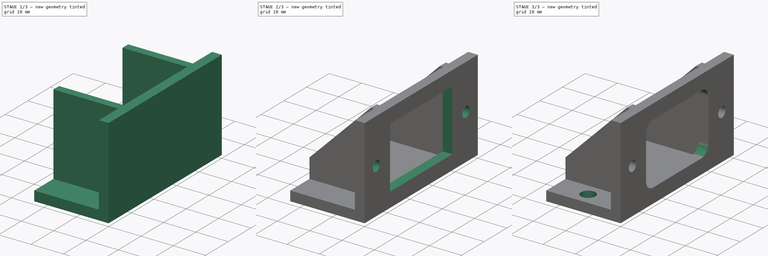
[diagram: build sequence overview — one tinted view per stage of 3, left to right]
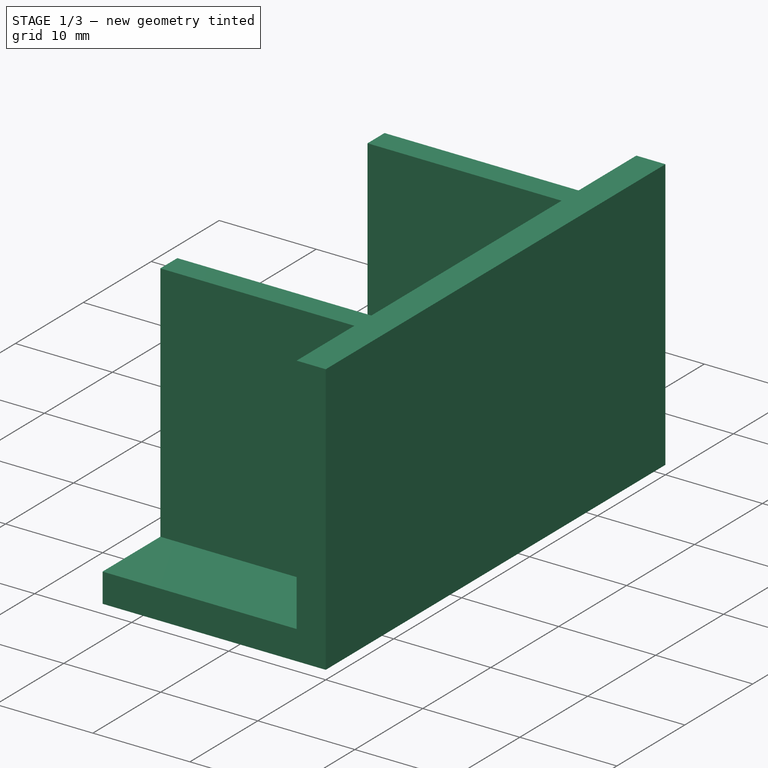
[diagram: stage 1 of 3 — iso view after this stage's code; geometry added in this stage tinted green]
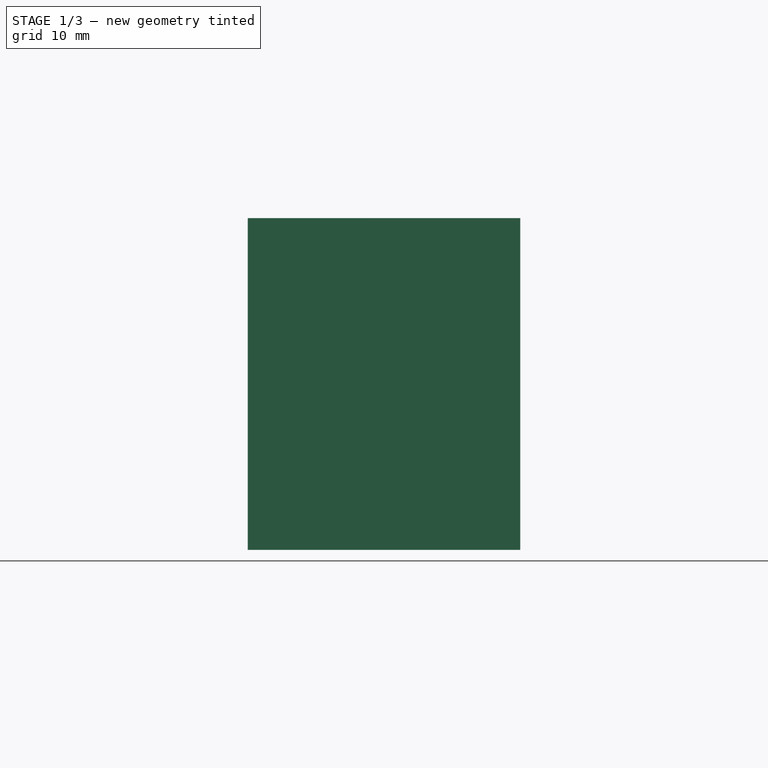
[diagram: stage 1 of 3 — front view after this stage's code; geometry added in this stage tinted green]
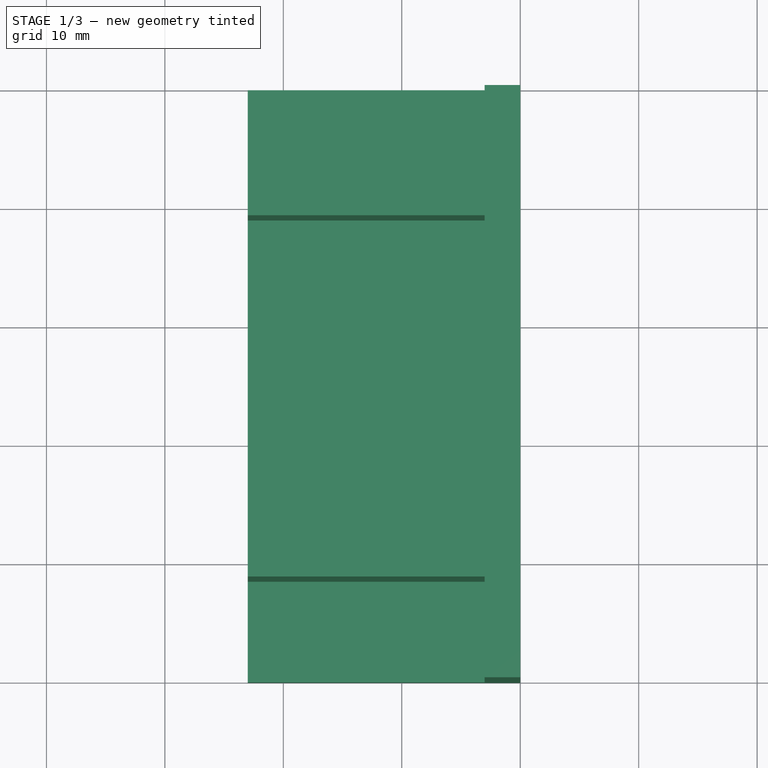
[diagram: stage 1 of 3 — top view after this stage's code; geometry added in this stage tinted green]
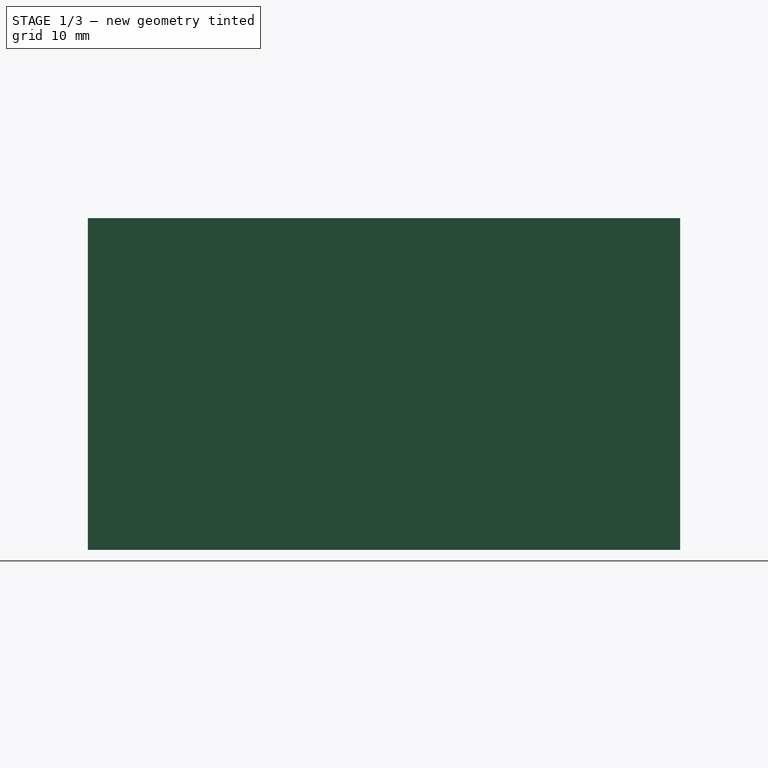
[diagram: stage 1 of 3 — right view after this stage's code; geometry added in this stage tinted green]
FCSTD DOCUMENT  (FreeCAD 0.18R14555 (Git shallow))
Label: Plug Mount
License: All rights reserved
LicenseURL: http://en.wikipedia.org/wiki/All_rights_reserved
objects: Sketcher::SketchObject×4, PartDesign::Pad×2, PartDesign::Chamfer×1, PartDesign::Pocket×1, PartDesign::Fillet×1, PartDesign::Hole×1, PartDesign::Body×1
note: 15 computed .brp shape members not serialized (recipe doc carries the construction recipe); baked Part::Feature solids carry a one-line shape summary decoded from their .brp

FEATURE [Sketcher::SketchObject] Sketch
  MapMode = 5
  Placement = pos=(0,0,0) rot=(1,0,0;1.5708rad)
  Support = -> [XZ_Plane]
  sketch-geometry (6):
    g0: LineSegment StartX=-23 StartY=3 StartZ=0 EndX=-23 EndY=0 EndZ=0
    g1: LineSegment StartX=-23 StartY=0 StartZ=0 EndX=0 EndY=0 EndZ=0
    g2: LineSegment StartX=0 StartY=0 StartZ=0 EndX=0 EndY=28 EndZ=0
    g3: LineSegment StartX=0 StartY=28 StartZ=0 EndX=-3 EndY=28 EndZ=0
    g4: LineSegment StartX=-3 StartY=28 StartZ=0 EndX=-3 EndY=3 EndZ=0
    g5: LineSegment StartX=-3 StartY=3 StartZ=0 EndX=-23 EndY=3 EndZ=0
  constraints (17):
    c: Coincident(g0,g1)
    c: Coincident(g1,g2)
    c: Coincident(g2,g3)
    c: Coincident(g3,g4)
    c: Coincident(g4,g5)
    c: Coincident(g5,g0)
    c: Horizontal(g1)
    c: Horizontal(g5)
    c: Horizontal(g3)
    c: Vertical(g0)
    c: Vertical(g4)
    c: Vertical(g2)
    c: Equal(g3,g0)
    c: DistanceX(g3,g3) = 3
    c: Coincident(g1,g-1)
    c: DistanceY(g4,g4) = 25
    c: DistanceX(g5,g5) = 20
FEATURE [PartDesign::Pad] Pad
  Length = 50
  Length2 = 100
  Placement = pos=(0,0,0) rot=(1,0,0;1.5708rad)
  Profile = -> Sketch
  Type = 0
FEATURE [Sketcher::SketchObject] Sketch003
  ExternalGeometry = -> [Pad]
  MapMode = 5
  Placement = pos=(0,2e-15,3) rot=(0,0,1;3.14159rad)
  Support = -> [Pad]
  sketch-geometry (8):
    g0: LineSegment StartX=3 StartY=41.5 StartZ=0 EndX=23 EndY=41.5 EndZ=0
    g1: LineSegment StartX=23 StartY=41.5 StartZ=0 EndX=23 EndY=39 EndZ=0
    g2: LineSegment StartX=23 StartY=39 StartZ=0 EndX=3 EndY=39 EndZ=0
    g3: LineSegment StartX=3 StartY=39 StartZ=0 EndX=3 EndY=41.5 EndZ=0
    g4: LineSegment StartX=3 StartY=11 StartZ=0 EndX=23 EndY=11 EndZ=0
    g5: LineSegment StartX=23 StartY=11 StartZ=0 EndX=23 EndY=8.5 EndZ=0
    g6: LineSegment StartX=23 StartY=8.5 StartZ=0 EndX=3 EndY=8.5 EndZ=0
    g7: LineSegment StartX=3 StartY=8.5 StartZ=0 EndX=3 EndY=11 EndZ=0
  constraints (24):
    c: Coincident(g0,g1)
    c: Coincident(g1,g2)
    c: Coincident(g2,g3)
    c: Coincident(g3,g0)
    c: Horizontal(g0)
    c: Horizontal(g2)
    c: Vertical(g1)
    c: Vertical(g3)
    c: Coincident(g4,g5)
    c: Coincident(g5,g6)
    c: Coincident(g6,g7)
    c: Coincident(g7,g4)
    c: Horizontal(g4)
    c: Horizontal(g6)
    c: Vertical(g5)
    c: Vertical(g7)
    c: Vertical(g0,g-3)
    c: Vertical(g0,g-3)
    c: DistanceY(g1,g1) = 2.5
    c: DistanceY(g0,g-3) = 8.5
    c: Equal(g5,g1)
    c: Vertical(g4,g1)
    c: Vertical(g4,g2)
    c: DistanceY(g-4,g5) = 8.5
FEATURE [PartDesign::Pad] Pad001
  BaseFeature = -> Pad
  Length = 25
  Length2 = 100
  Placement = pos=(0,0,0) rot=(1,0,0;1.5708rad)
  Profile = -> Sketch003
  Type = 0
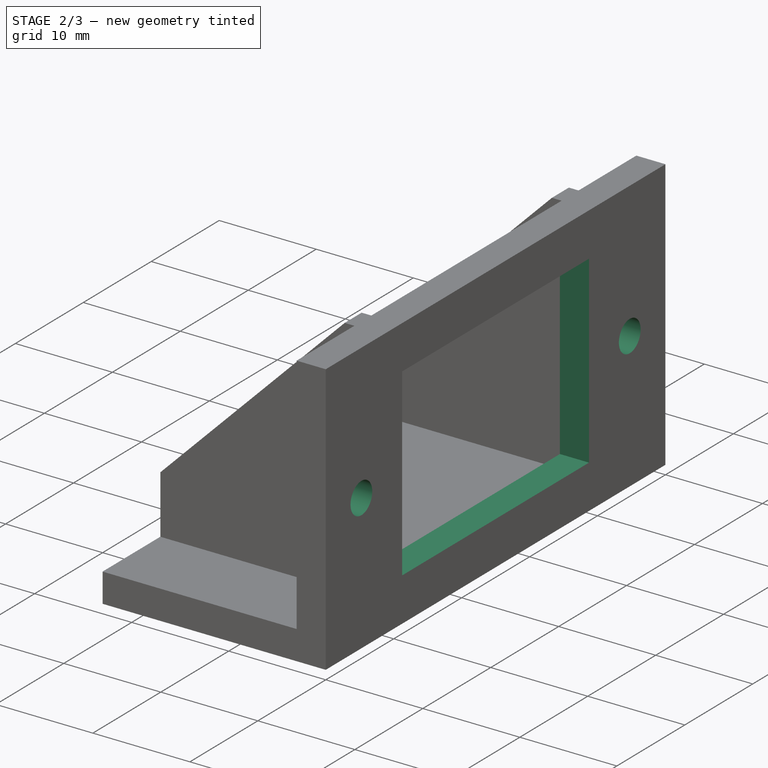
[diagram: stage 2 of 3 — iso view after this stage's code; geometry added in this stage tinted green]
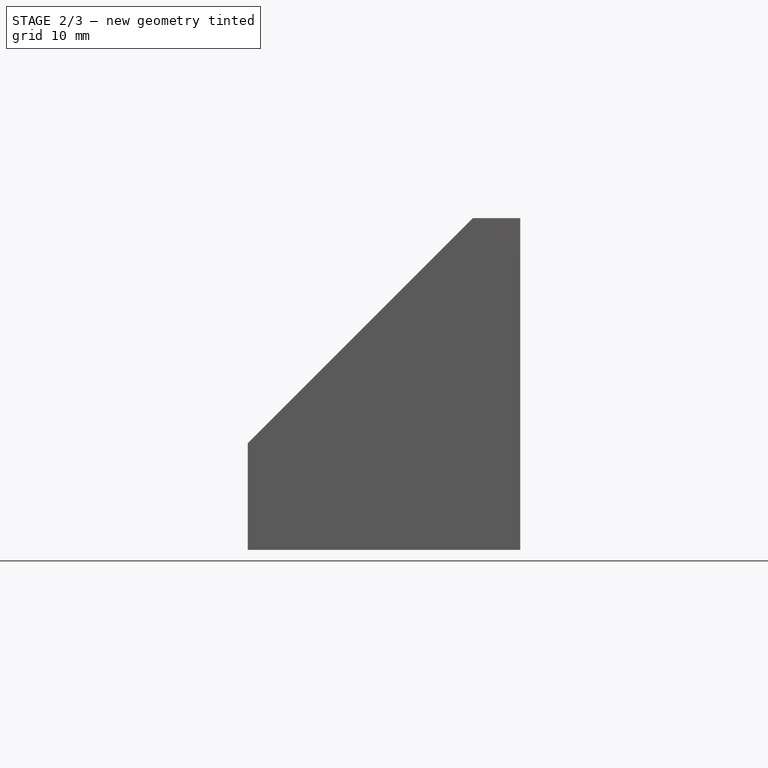
[diagram: stage 2 of 3 — front view after this stage's code; geometry added in this stage tinted green]
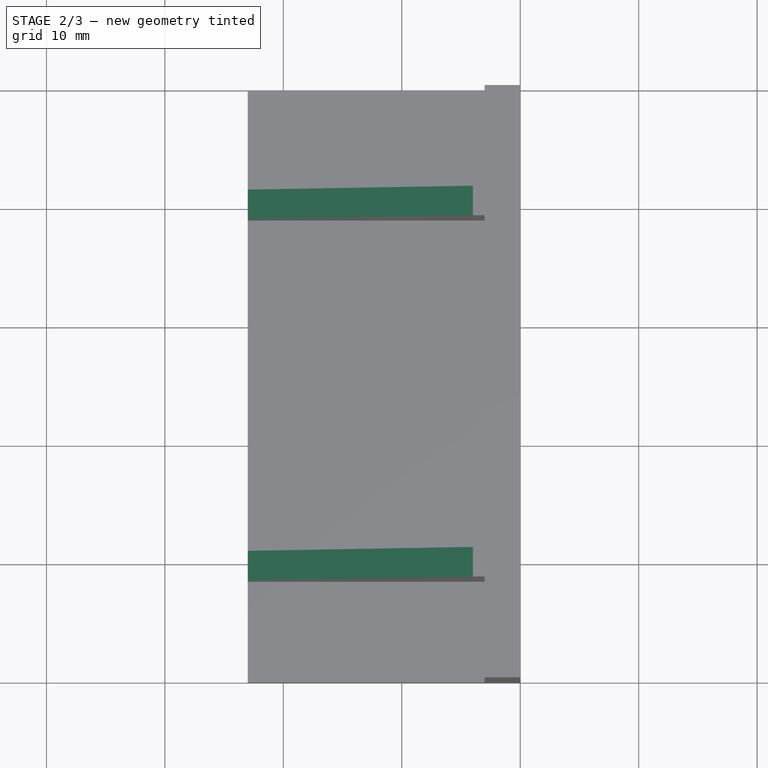
[diagram: stage 2 of 3 — top view after this stage's code; geometry added in this stage tinted green]
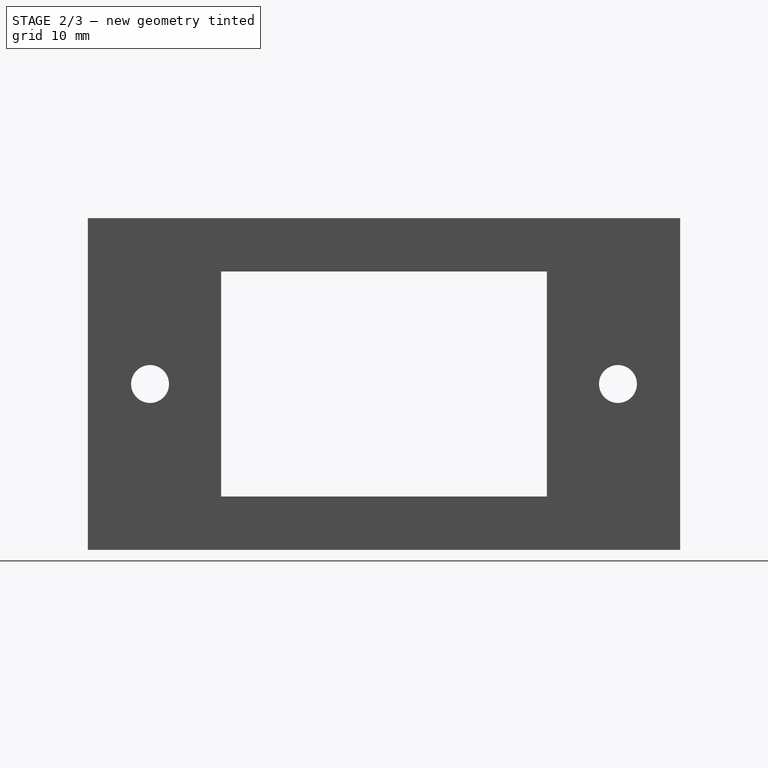
[diagram: stage 2 of 3 — right view after this stage's code; geometry added in this stage tinted green]
FEATURE [PartDesign::Chamfer] Chamfer
  Base = -> Pad001 [Edge20,Edge14]
  BaseFeature = -> Pad001
  Placement = pos=(0,0,0) rot=(1,0,0;1.5708rad)
  Size = 19
FEATURE [Sketcher::SketchObject] Sketch004
  ExternalGeometry = -> [Chamfer]
  MapMode = 5
  Placement = pos=(0,0,0) rot=(0.707107,0,0.707107;3.14159rad)
  Support = -> [Chamfer]
  sketch-geometry (11):
    g0: LineSegment StartX=23.5 StartY=38.75 StartZ=0 EndX=4.5 EndY=38.75 EndZ=0
    g1: LineSegment StartX=4.5 StartY=38.75 StartZ=0 EndX=4.5 EndY=11.25 EndZ=0
    g2: LineSegment StartX=4.5 StartY=11.25 StartZ=0 EndX=23.5 EndY=11.25 EndZ=0
    g3: LineSegment StartX=23.5 StartY=11.25 StartZ=0 EndX=23.5 EndY=38.75 EndZ=0
    g4: Circle CenterX=14 CenterY=44.75 CenterZ=0 NormalX=0 NormalY=0 NormalZ=1 AngleXU=0 Radius=1.6
    g5: Circle CenterX=14 CenterY=5.25 CenterZ=0 NormalX=0 NormalY=0 NormalZ=1 AngleXU=0 Radius=1.6
    g6: LineSegment [constr] StartX=23.5 StartY=38.75 StartZ=0 EndX=4.5 EndY=11.25 EndZ=0
    g7: LineSegment [constr] StartX=23.5 StartY=11.25 StartZ=0 EndX=4.5 EndY=38.75 EndZ=0
    g8: GeomPoint X=14 Y=25 Z=0
    g9: LineSegment [constr] StartX=28 StartY=50 StartZ=0 EndX=0 EndY=0 EndZ=0
    g10: LineSegment [constr] StartX=28 StartY=-3.11e-14 StartZ=0 EndX=5.68e-14 EndY=50 EndZ=0
  constraints (28):
    c: Coincident(g0,g1)
    c: Coincident(g1,g2)
    c: Coincident(g2,g3)
    c: Coincident(g3,g0)
    c: Horizontal(g0)
    c: Horizontal(g2)
    c: Vertical(g1)
    c: Vertical(g3)
    c: DistanceY(g3,g3) = 27.5
    c: DistanceX(g2,g2) = 19
    c: Coincident(g6,g0)
    c: Coincident(g1,g6)
    c: Coincident(g7,g0)
    c: Coincident(g7,g2)
    c: PointOnObject(g8,g7)
    c: PointOnObject(g8,g6)
    c: Vertical(g5,g8)
    c: Vertical(g8,g4)
    c: Equal(g5,g4)
    c: Distance(g4,g0) = 6
    c: Distance(g5,g2) = 6
    c: Radius(g4) = 1.6
    c: Coincident(g9,g-4)
    c: Coincident(g10,g-3)
    c: Coincident(g9,g-1)
    c: Coincident(g10,g-4)
    c: PointOnObject(g8,g10)
    c: PointOnObject(g8,g9)
FEATURE [PartDesign::Pocket] Pocket
  BaseFeature = -> Chamfer
  Length = 5
  Length2 = 100
  Placement = pos=(0,0,0) rot=(1,0,0;1.5708rad)
  Profile = -> Sketch004
  Type = 1
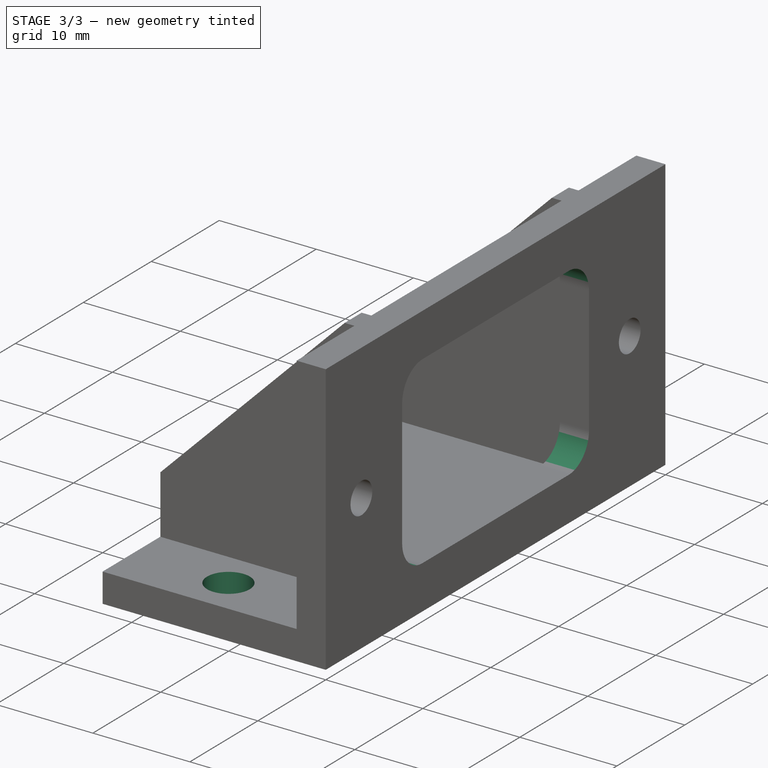
[diagram: stage 3 of 3 — iso view after this stage's code; geometry added in this stage tinted green]
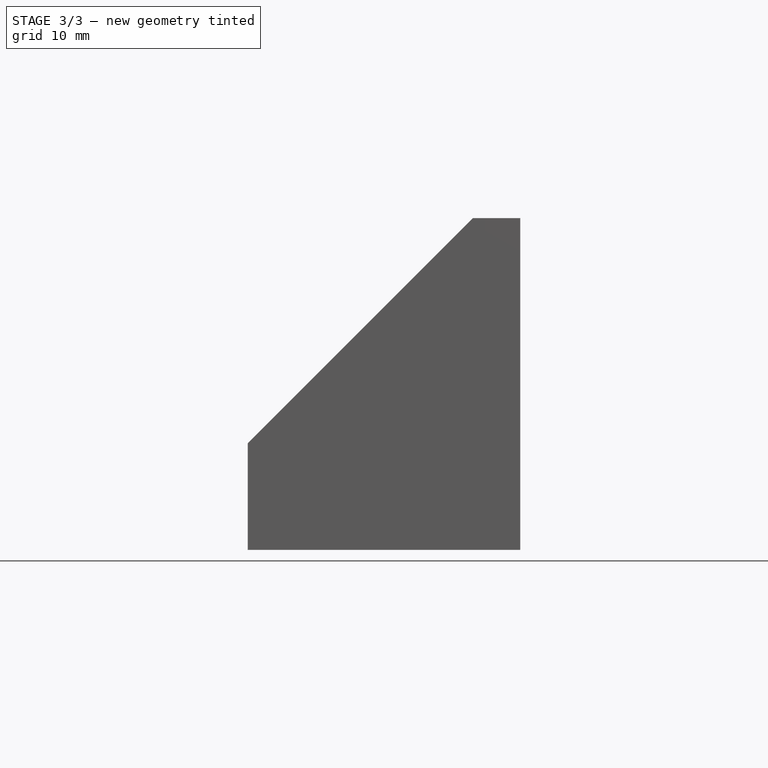
[diagram: stage 3 of 3 — front view after this stage's code; geometry added in this stage tinted green]
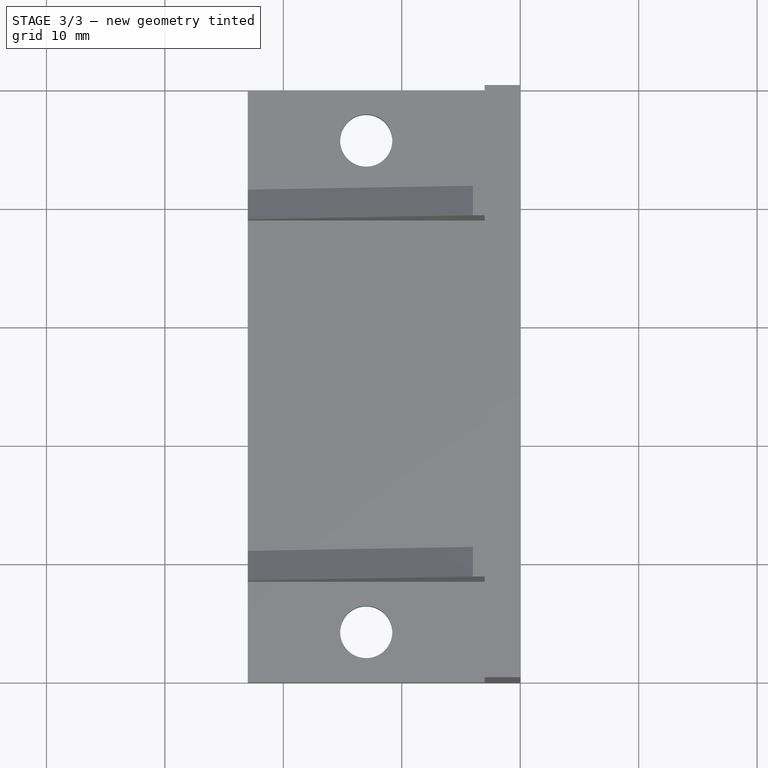
[diagram: stage 3 of 3 — top view after this stage's code; geometry added in this stage tinted green]
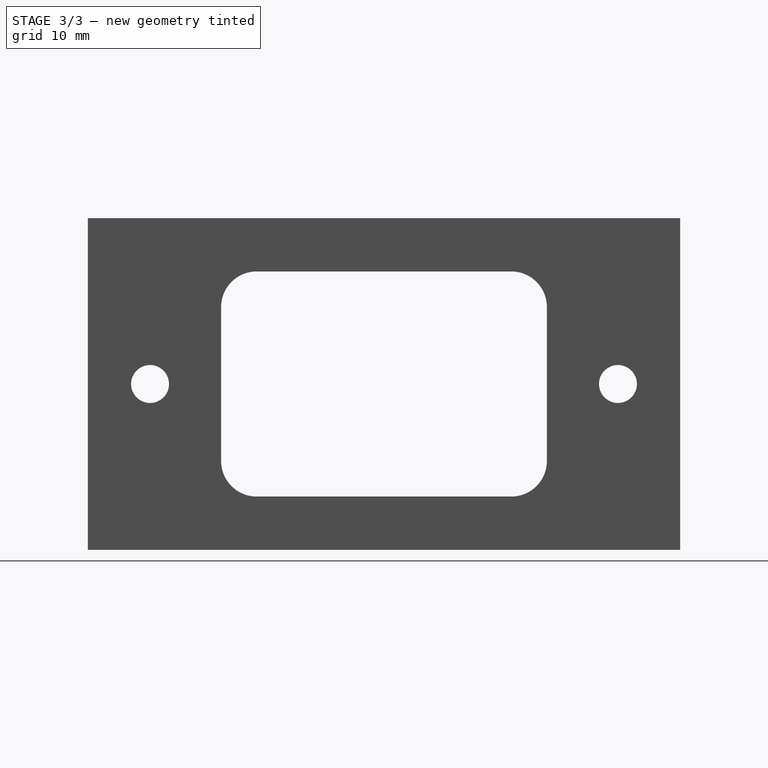
[diagram: stage 3 of 3 — right view after this stage's code; geometry added in this stage tinted green]
FEATURE [Sketcher::SketchObject] Sketch005
  ExternalGeometry = -> [Pocket]
  MapMode = 5
  Placement = pos=(0,4.7e-15,3) rot=(0,0,1;3.14159rad)
  Support = -> [Pocket]
  sketch-geometry (6):
    g0: Circle CenterX=13 CenterY=4.25 CenterZ=0 NormalX=0 NormalY=0 NormalZ=1 AngleXU=0 Radius=1.5
    g1: Circle CenterX=13 CenterY=45.75 CenterZ=0 NormalX=0 NormalY=0 NormalZ=1 AngleXU=0 Radius=1.5
    g2: LineSegment [constr] StartX=23 StartY=0 StartZ=0 EndX=3 EndY=8.5 EndZ=0
    g3: LineSegment [constr] StartX=3 StartY=0 StartZ=0 EndX=23 EndY=8.5 EndZ=0
    g4: LineSegment [constr] StartX=23 StartY=41.5 StartZ=0 EndX=3 EndY=50 EndZ=0
    g5: LineSegment [constr] StartX=3 StartY=41.5 StartZ=0 EndX=23 EndY=50 EndZ=0
  constraints (14):
    c: Equal(g1,g0)
    c: Radius(g0) = 1.5
    c: Vertical(g1,g0)
    c: Coincident(g2,g-4)
    c: Coincident(g3,g-4)
    c: Coincident(g2,g-3)
    c: Coincident(g3,g-3)
    c: PointOnObject(g0,g3)
    c: PointOnObject(g0,g2)
    c: Coincident(g5,g-5)
    c: Coincident(g5,g-6)
    c: Coincident(g4,g-5)
    c: Coincident(g4,g-6)
    c: PointOnObject(g1,g4)
FEATURE [PartDesign::Fillet] Fillet
  Base = -> Pocket [Edge58,Edge60,Edge55,Edge56]
  BaseFeature = -> Pocket
  Placement = pos=(0,0,0) rot=(1,0,0;1.5708rad)
  Radius = 3
FEATURE [PartDesign::Hole] Hole
  BaseFeature = -> Fillet
  Depth = 25
  DepthType = 0
  Diameter = 4.4
  DrillPoint = 1
  DrillPointAngle = 118
  HoleCutCountersinkAngle = 90
  HoleCutDepth = 0
  HoleCutDiameter = 4
  HoleCutType = 0
  ModelActualThread = false
  Placement = pos=(0,0,0) rot=(1,0,0;1.5708rad)
  Profile = -> Sketch005
  Tapered = false
  TaperedAngle = 90
  ThreadAngle = 0
  ThreadClass = 0
  ThreadCutOffInner = 0
  ThreadCutOffOuter = 0
  ThreadDirection = 0
  ThreadFit = 0
  ThreadPitch = 0
  ThreadSize = 11
  ThreadType = 2
  Threaded = false
FEATURE [PartDesign::Body] Body
  Group = -> [Sketch,Pad,Sketch003,Pad001,Chamfer,Sketch004,Pocket,Sketch005,Fillet,Hole]
  Origin = -> Origin
  Tip = -> Hole
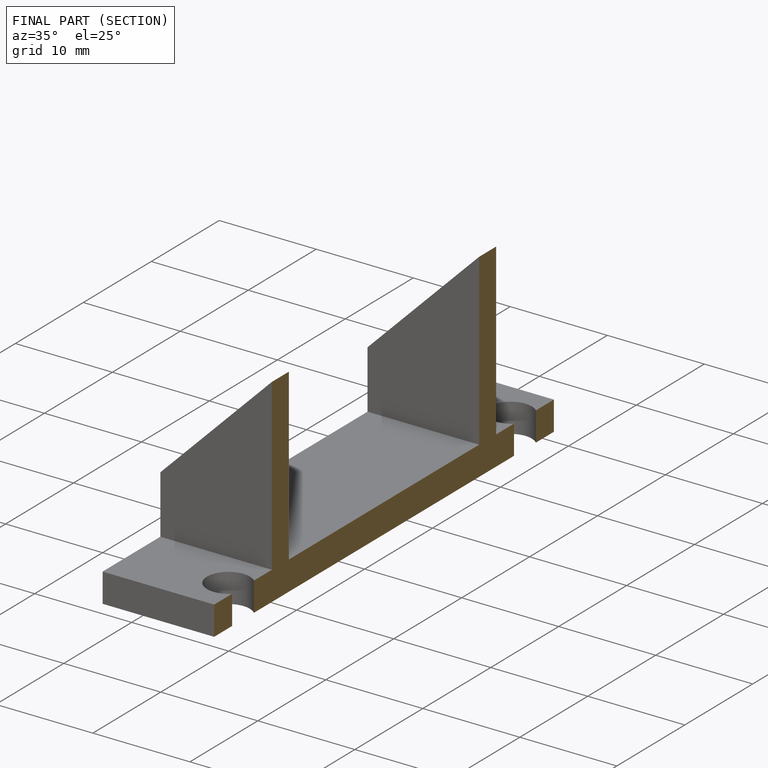
[diagram: finished part — half-section view (interior)]
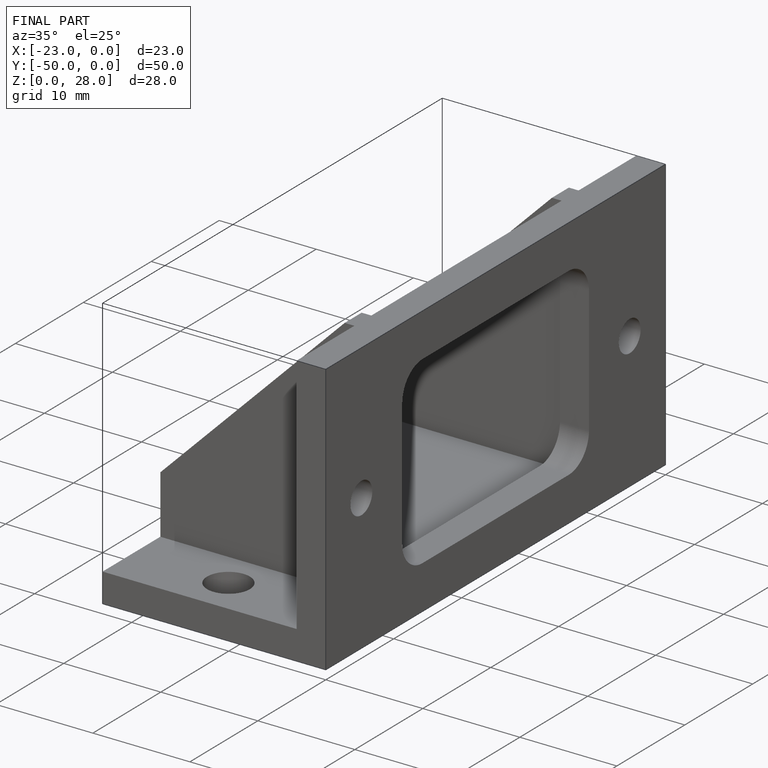
[diagram: finished part — iso view with bounding-box wireframe]
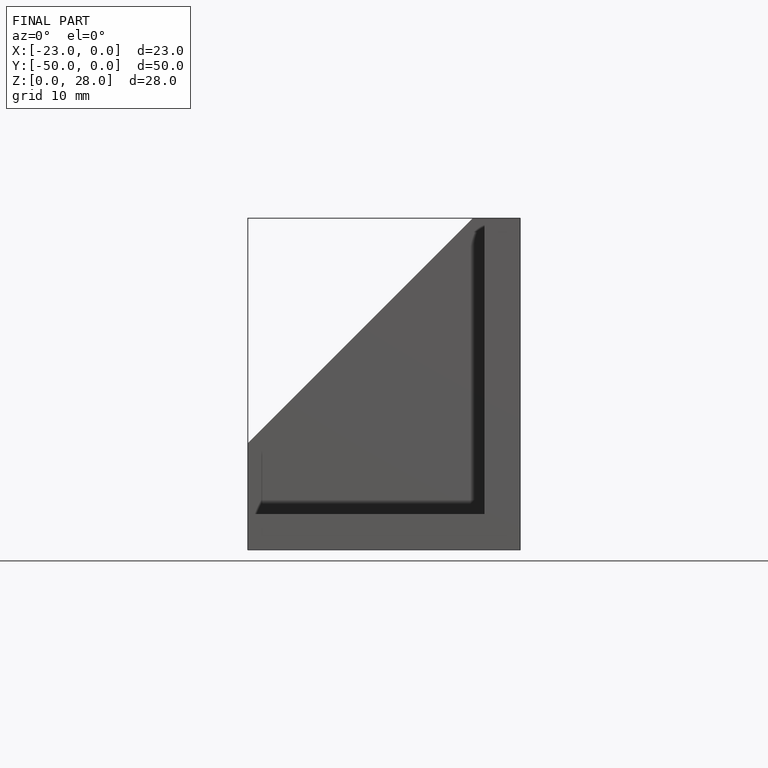
[diagram: finished part — front view with bounding-box wireframe]
